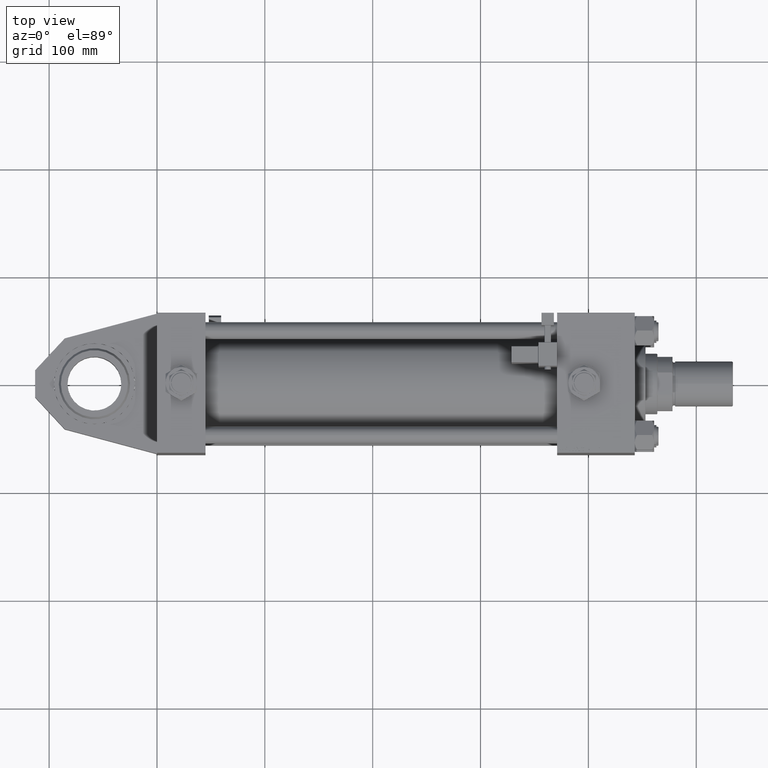
[diagram: clean part render]
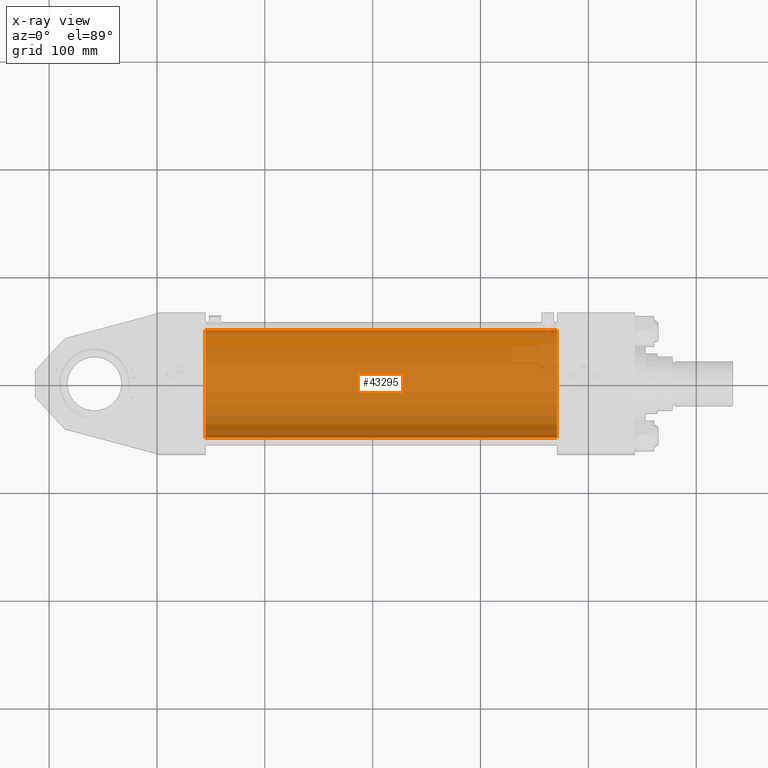
[diagram: x-ray — body ghosted, one internal face saturated and labeled with its STEP entity id]
A machine part, top view, then the same camera in x-ray: the body is ghosted and one INTERNAL B-rep face — a face not visible from any outside direction — is saturated and labeled: STEP entity #43295.
In plain terms, the highlighted cylindrical surface (partial cylindrical patch) has radius 50 mm, axis along (-1, 0, -0).
Its self-contained STEP definition (entity closure, byte-faithful):
#2844 = DIRECTION ( 'NONE',  ( 0.000000000000000000, 0.000000000000000000, -1.000000000000000000 ) ) ;
#2957 = AXIS2_PLACEMENT_3D ( 'NONE', #15450, #41732, #2844 ) ;
#3851 = AXIS2_PLACEMENT_3D ( 'NONE', #36767, #41795, #33685 ) ;
#4395 = AXIS2_PLACEMENT_3D ( 'NONE', #51736, #13956, #39127 ) ;
#5332 = ORIENTED_EDGE ( 'NONE', *, *, #31779, .F. ) ;
#8381 = CIRCLE ( 'NONE', #2957, 50.00000000000000000 ) ;
#9470 = CYLINDRICAL_SURFACE ( 'NONE', #4395, 50.00000000000000000 ) ;
#10429 = CARTESIAN_POINT ( 'NONE',  ( 371.0000000000000000, -2.602085213965210642E-15, 50.00000000000000000 ) ) ;
#10686 = ORIENTED_EDGE ( 'NONE', *, *, #19930, .F. ) ;
#13805 = CARTESIAN_POINT ( 'NONE',  ( 371.0000000000000000, -2.602085213965210642E-15, 50.00000000000000000 ) ) ;
#13956 = DIRECTION ( 'NONE',  ( -1.000000000000000000, -0.000000000000000000, -0.000000000000000000 ) ) ;
#15388 = VERTEX_POINT ( 'NONE', #41492 ) ;
#15450 = CARTESIAN_POINT ( 'NONE',  ( 371.0000000000000000, -2.602085213965210642E-15, 0.000000000000000000 ) ) ;
#15596 = VECTOR ( 'NONE', #53161, 1000.000000000000000 ) ;
#17610 = EDGE_LOOP ( 'NONE', ( #29067, #28847, #10686, #5332 ) ) ;
#18546 = LINE ( 'NONE', #10429, #52472 ) ;
#19105 = DIRECTION ( 'NONE',  ( -1.000000000000000000, -0.000000000000000000, -0.000000000000000000 ) ) ;
#19930 = EDGE_CURVE ( 'NONE', #50875, #52606, #36920, .T. ) ;
#20370 = EDGE_CURVE ( 'NONE', #31730, #15388, #8381, .T. ) ;
#21524 = FACE_OUTER_BOUND ( 'NONE', #17610, .T. ) ;
#22850 = EDGE_CURVE ( 'NONE', #15388, #52606, #54268, .T. ) ;
#27482 = CARTESIAN_POINT ( 'NONE',  ( 45.00000000000000000, -2.602085213965210642E-15, 50.00000000000000000 ) ) ;
#28847 = ORIENTED_EDGE ( 'NONE', *, *, #22850, .T. ) ;
#29067 = ORIENTED_EDGE ( 'NONE', *, *, #20370, .T. ) ;
#31730 = VERTEX_POINT ( 'NONE', #13805 ) ;
#31779 = EDGE_CURVE ( 'NONE', #31730, #50875, #18546, .T. ) ;
#31901 = CARTESIAN_POINT ( 'NONE',  ( 45.00000000000000000, 3.521148781771555838E-15, -50.00000000000000000 ) ) ;
#32956 = CARTESIAN_POINT ( 'NONE',  ( 371.0000000000000000, 3.521148781771555838E-15, -50.00000000000000000 ) ) ;
#33685 = DIRECTION ( 'NONE',  ( 0.000000000000000000, 0.000000000000000000, -1.000000000000000000 ) ) ;
#36767 = CARTESIAN_POINT ( 'NONE',  ( 45.00000000000000000, -2.602085213965210642E-15, 0.000000000000000000 ) ) ;
#36920 = CIRCLE ( 'NONE', #3851, 50.00000000000000000 ) ;
#39127 = DIRECTION ( 'NONE',  ( 0.000000000000000000, 0.000000000000000000, 1.000000000000000000 ) ) ;
#41492 = CARTESIAN_POINT ( 'NONE',  ( 371.0000000000000000, 3.521148781771555838E-15, -50.00000000000000000 ) ) ;
#41732 = DIRECTION ( 'NONE',  ( 1.000000000000000000, 0.000000000000000000, 0.000000000000000000 ) ) ;
#41795 = DIRECTION ( 'NONE',  ( 1.000000000000000000, 0.000000000000000000, 0.000000000000000000 ) ) ;
#43295 = ADVANCED_FACE ( 'NONE', ( #21524 ), #9470, .F. ) ;
#50875 = VERTEX_POINT ( 'NONE', #27482 ) ;
#51736 = CARTESIAN_POINT ( 'NONE',  ( 371.0000000000000000, -2.602085213965210642E-15, 0.000000000000000000 ) ) ;
#52472 = VECTOR ( 'NONE', #19105, 1000.000000000000000 ) ;
#52606 = VERTEX_POINT ( 'NONE', #31901 ) ;
#53161 = DIRECTION ( 'NONE',  ( -1.000000000000000000, -0.000000000000000000, -0.000000000000000000 ) ) ;
#54268 = LINE ( 'NONE', #32956, #15596 ) ;